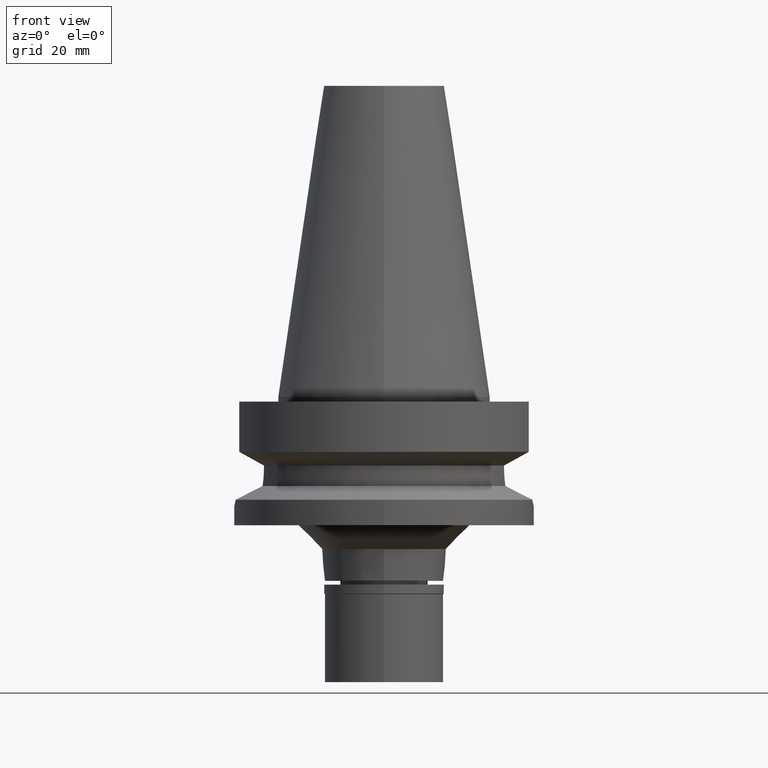
[diagram: clean part render]
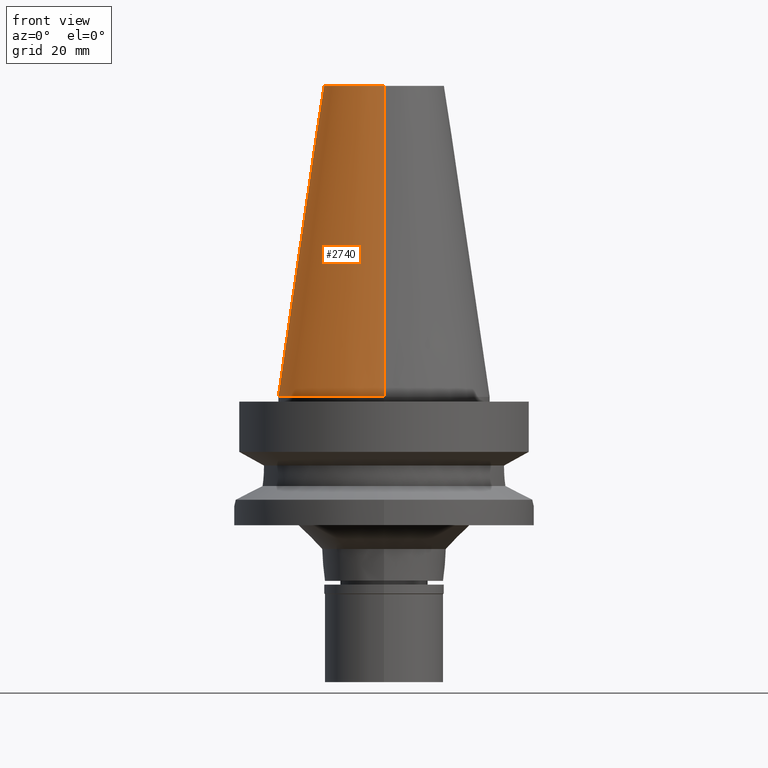
[diagram: same view with one face highlighted and labeled with its STEP entity id]
A machine part, front view. The second image highlights one B-rep face of the part: STEP entity #2740.
In plain terms, the highlighted conical surface has half-angle 8.297 deg.
Its self-contained STEP definition (entity closure, byte-faithful):
#76 = VECTOR ( 'NONE', #2373, 1000.000000000000114 ) ;
#226 = EDGE_LOOP ( 'NONE', ( #2738, #1549, #2753, #2437 ) ) ;
#403 = LINE ( 'NONE', #453, #76 ) ;
#405 = DIRECTION ( 'NONE',  ( 0.0000000000000000000, 0.0000000000000000000, -1.000000000000000000 ) ) ;
#411 = CARTESIAN_POINT ( 'NONE',  ( 0.0000000000000000000, -12.68766899429999917, 65.40000000000000568 ) ) ;
#453 = CARTESIAN_POINT ( 'NONE',  ( 0.0000000000000000000, -12.68766899429999917, 65.40000000000000568 ) ) ;
#484 = CONICAL_SURFACE ( 'NONE', #2032, 17.45633449714999941, 0.1448099680379422438 ) ;
#600 = EDGE_CURVE ( 'NONE', #1115, #1904, #403, .T. ) ;
#689 = AXIS2_PLACEMENT_3D ( 'NONE', #2526, #405, #850 ) ;
#725 = VECTOR ( 'NONE', #2385, 1000.000000000000114 ) ;
#733 = CIRCLE ( 'NONE', #1038, 12.68766899429999917 ) ;
#753 = CARTESIAN_POINT ( 'NONE',  ( 0.0000000000000000000, 12.68766899429999917, 65.40000000000000568 ) ) ;
#815 = EDGE_CURVE ( 'NONE', #2181, #1734, #1013, .T. ) ;
#850 = DIRECTION ( 'NONE',  ( 0.0000000000000000000, -1.000000000000000000, 0.0000000000000000000 ) ) ;
#1013 = LINE ( 'NONE', #753, #725 ) ;
#1038 = AXIS2_PLACEMENT_3D ( 'NONE', #2964, #2281, #1092 ) ;
#1092 = DIRECTION ( 'NONE',  ( 0.0000000000000000000, -1.000000000000000000, 0.0000000000000000000 ) ) ;
#1115 = VERTEX_POINT ( 'NONE', #411 ) ;
#1142 = DIRECTION ( 'NONE',  ( 0.0000000000000000000, 0.0000000000000000000, -1.000000000000000000 ) ) ;
#1334 = CARTESIAN_POINT ( 'NONE',  ( 0.0000000000000000000, -22.22500000000000142, 6.394884621841000123E-14 ) ) ;
#1549 = ORIENTED_EDGE ( 'NONE', *, *, #600, .F. ) ;
#1649 = CARTESIAN_POINT ( 'NONE',  ( 0.0000000000000000000, 12.68766899429999917, 65.40000000000000568 ) ) ;
#1734 = VERTEX_POINT ( 'NONE', #1992 ) ;
#1904 = VERTEX_POINT ( 'NONE', #1334 ) ;
#1930 = EDGE_CURVE ( 'NONE', #1115, #2181, #733, .T. ) ;
#1992 = CARTESIAN_POINT ( 'NONE',  ( 0.0000000000000000000, 22.22500000000000142, 6.394884621841000123E-14 ) ) ;
#2032 = AXIS2_PLACEMENT_3D ( 'NONE', #3059, #1142, #2320 ) ;
#2181 = VERTEX_POINT ( 'NONE', #1649 ) ;
#2281 = DIRECTION ( 'NONE',  ( 0.0000000000000000000, 0.0000000000000000000, -1.000000000000000000 ) ) ;
#2320 = DIRECTION ( 'NONE',  ( 0.0000000000000000000, -1.000000000000000000, 0.0000000000000000000 ) ) ;
#2373 = DIRECTION ( 'NONE',  ( 0.0000000000000000000, -0.1443043893539925626, -0.9895333461855498891 ) ) ;
#2385 = DIRECTION ( 'NONE',  ( 0.0000000000000000000, 0.1443043893539925626, -0.9895333461855498891 ) ) ;
#2437 = ORIENTED_EDGE ( 'NONE', *, *, #815, .T. ) ;
#2526 = CARTESIAN_POINT ( 'NONE',  ( 0.0000000000000000000, 1.625106302469000024E-14, 2.842170943039999687E-14 ) ) ;
#2561 = CIRCLE ( 'NONE', #689, 22.22500000000000142 ) ;
#2608 = EDGE_CURVE ( 'NONE', #1904, #1734, #2561, .T. ) ;
#2609 = FACE_OUTER_BOUND ( 'NONE', #226, .T. ) ;
#2738 = ORIENTED_EDGE ( 'NONE', *, *, #2608, .F. ) ;
#2740 = ADVANCED_FACE ( 'NONE', ( #2609 ), #484, .T. ) ;
#2753 = ORIENTED_EDGE ( 'NONE', *, *, #1930, .T. ) ;
#2964 = CARTESIAN_POINT ( 'NONE',  ( 0.0000000000000000000, 1.625106302469000024E-14, 65.40000000000000568 ) ) ;
#3059 = CARTESIAN_POINT ( 'NONE',  ( 0.0000000000000000000, 1.625106302469000024E-14, 32.70000000000000284 ) ) ;